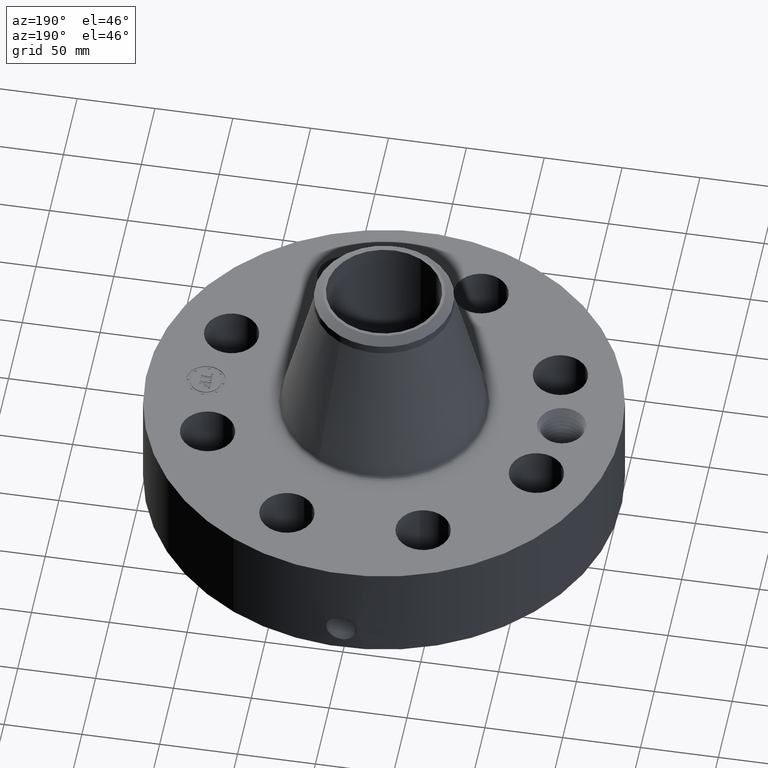
[diagram: clean part render]
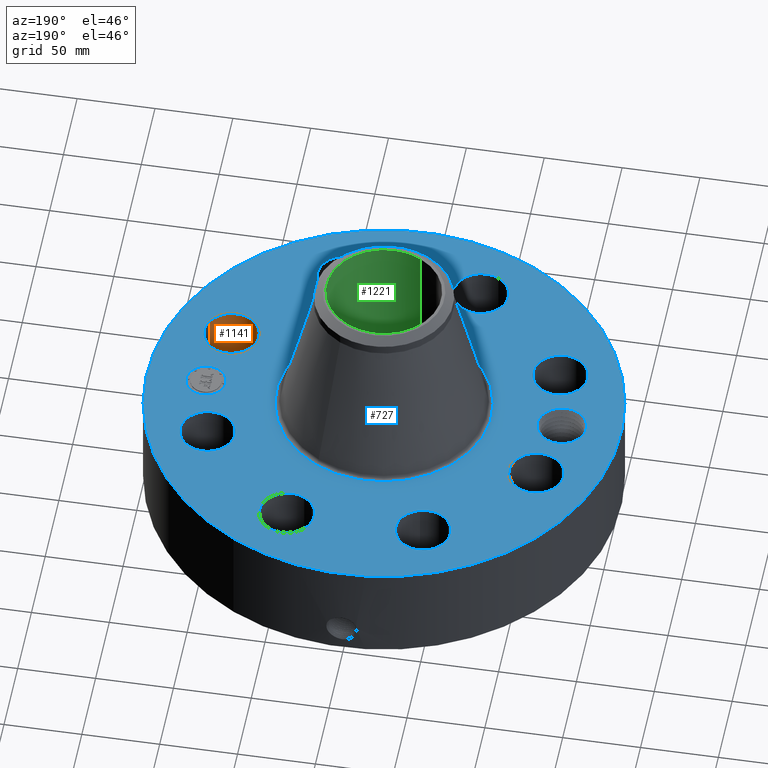
[diagram: same view with three faces highlighted in distinct colors, each labeled with its STEP entity id]
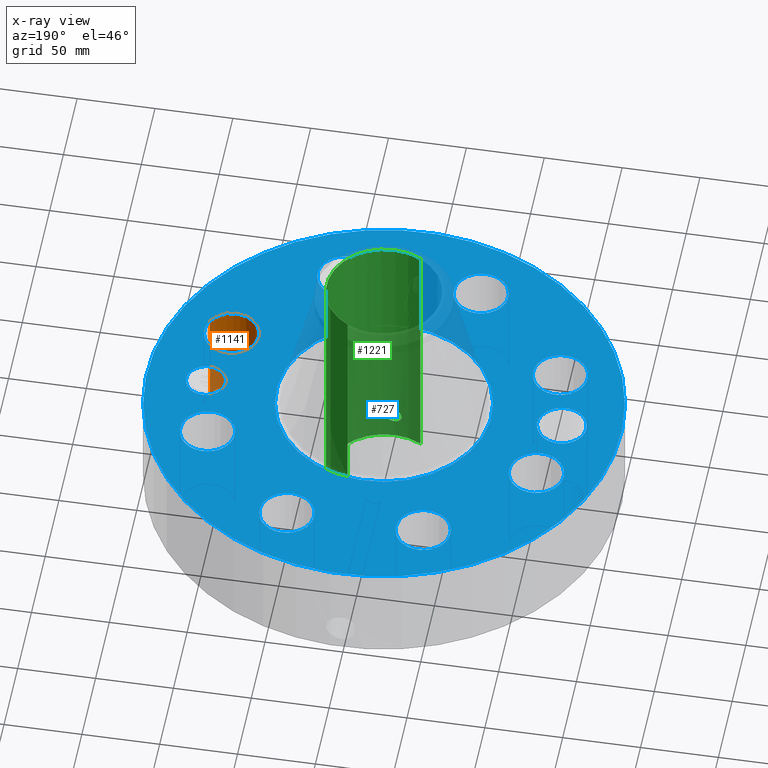
[diagram: x-ray of the same camera — body ghosted, the three highlighted faces saturated]
A machine part, auxiliary view with three faces highlighted in distinct colors.
The next image is the same camera in x-ray (body ghosted, the three faces saturated) — at least one of them is partly hidden behind the body in this view.
Their STEP definitions:

[orange] entity #1141 — the highlighted cylindrical surface (edge-blend (fillet) strip) has radius 17.526 mm, axis along (0, -0, -1).
#228=AXIS2_PLACEMENT_3D('Circle Axis2P3D',#226,#227,$) ;
#558=AXIS2_PLACEMENT_3D('Circle Axis2P3D',#556,#557,$) ;
#1123=AXIS2_PLACEMENT_3D('Cylinder Axis2P3D',#1120,#1121,#1122) ;
#226=CARTESIAN_POINT('Axis2P3D Location',(4.15745789632,-1.72207544565,0.250000000001)) ;
#230=CARTESIAN_POINT('Vertex',(4.76298986402,-2.05287906729,0.250000000001)) ;
#232=CARTESIAN_POINT('Vertex',(3.55192592861,-1.39127182401,0.250000000001)) ;
#551=CARTESIAN_POINT('Vertex',(3.55192592861,-1.39127182401,2.87000000001)) ;
#553=CARTESIAN_POINT('Vertex',(4.76298986402,-2.05287906729,2.87000000001)) ;
#556=CARTESIAN_POINT('Axis2P3D Location',(4.15745789632,-1.72207544565,2.87000000001)) ;
#1120=CARTESIAN_POINT('Axis2P3D Location',(4.15745789632,-1.72207544565,2.86606299214)) ;
#1125=CARTESIAN_POINT('Line Origine',(4.76298986402,-2.05287906729,1.56000000001)) ;
#1130=CARTESIAN_POINT('Line Origine',(3.55192592861,-1.39127182401,1.56000000001)) ;
#227=DIRECTION('Axis2P3D Direction',(0.,0.,-0.0393700787402)) ;
#557=DIRECTION('Axis2P3D Direction',(0.,0.,-0.0393700787402)) ;
#1121=DIRECTION('Axis2P3D Direction',(0.,-0.,-0.0393700787402)) ;
#1122=DIRECTION('Axis2P3D XDirection',(-0.0345504945626,0.0188750212049,0.)) ;
#1126=DIRECTION('Vector Direction',(0.,0.,-0.0393700787402)) ;
#1131=DIRECTION('Vector Direction',(0.,0.,-0.0393700787402)) ;
#1127=VECTOR('Line Direction',#1126,0.0393700787402) ;
#1132=VECTOR('Line Direction',#1131,0.0393700787402) ;
#1136=ORIENTED_EDGE('',*,*,#1129,.F.) ;
#1137=ORIENTED_EDGE('',*,*,#234,.T.) ;
#1138=ORIENTED_EDGE('',*,*,#1134,.T.) ;
#1139=ORIENTED_EDGE('',*,*,#560,.F.) ;
#1141=ADVANCED_FACE('PartBody',(#1140),#1124,.F.) ;
#229=CIRCLE('generated circle',#228,0.690000000003) ;
#559=CIRCLE('generated circle',#558,0.690000000003) ;
#1124=CYLINDRICAL_SURFACE('generated cylinder',#1123,0.690000000003) ;
#234=EDGE_CURVE('',#231,#233,#229,.T.) ;
#560=EDGE_CURVE('',#554,#552,#559,.T.) ;
#1129=EDGE_CURVE('',#231,#554,#1128,.F.) ;
#1134=EDGE_CURVE('',#233,#552,#1133,.F.) ;
#1135=EDGE_LOOP('',(#1136,#1137,#1138,#1139)) ;
#1140=FACE_OUTER_BOUND('',#1135,.T.) ;
#1128=LINE('Line',#1125,#1127) ;
#1133=LINE('Line',#1130,#1132) ;
#231=VERTEX_POINT('',#230) ;
#233=VERTEX_POINT('',#232) ;
#552=VERTEX_POINT('',#551) ;
#554=VERTEX_POINT('',#553) ;

[blue] entity #727 — the highlighted planar face has unit normal (0, 0, -1).
#58=AXIS2_PLACEMENT_3D('Circle Axis2P3D',#56,#57,$) ;
#391=AXIS2_PLACEMENT_3D('Circle Axis2P3D',#389,#390,$) ;
#490=AXIS2_PLACEMENT_3D('Plane Axis2P3D',#487,#488,#489) ;
#523=AXIS2_PLACEMENT_3D('Circle Axis2P3D',#521,#522,$) ;
#530=AXIS2_PLACEMENT_3D('Circle Axis2P3D',#528,#529,$) ;
#537=AXIS2_PLACEMENT_3D('Circle Axis2P3D',#535,#536,$) ;
#549=AXIS2_PLACEMENT_3D('Circle Axis2P3D',#547,#548,$) ;
#558=AXIS2_PLACEMENT_3D('Circle Axis2P3D',#556,#557,$) ;
#567=AXIS2_PLACEMENT_3D('Circle Axis2P3D',#565,#566,$) ;
#576=AXIS2_PLACEMENT_3D('Circle Axis2P3D',#574,#575,$) ;
#585=AXIS2_PLACEMENT_3D('Circle Axis2P3D',#583,#584,$) ;
#594=AXIS2_PLACEMENT_3D('Circle Axis2P3D',#592,#593,$) ;
#603=AXIS2_PLACEMENT_3D('Circle Axis2P3D',#601,#602,$) ;
#612=AXIS2_PLACEMENT_3D('Circle Axis2P3D',#610,#611,$) ;
#621=AXIS2_PLACEMENT_3D('Circle Axis2P3D',#619,#620,$) ;
#630=AXIS2_PLACEMENT_3D('Circle Axis2P3D',#628,#629,$) ;
#639=AXIS2_PLACEMENT_3D('Circle Axis2P3D',#637,#638,$) ;
#648=AXIS2_PLACEMENT_3D('Circle Axis2P3D',#646,#647,$) ;
#657=AXIS2_PLACEMENT_3D('Circle Axis2P3D',#655,#656,$) ;
#666=AXIS2_PLACEMENT_3D('Circle Axis2P3D',#664,#665,$) ;
#675=AXIS2_PLACEMENT_3D('Circle Axis2P3D',#673,#674,$) ;
#684=AXIS2_PLACEMENT_3D('Circle Axis2P3D',#682,#683,$) ;
#693=AXIS2_PLACEMENT_3D('Circle Axis2P3D',#691,#692,$) ;
#702=AXIS2_PLACEMENT_3D('Circle Axis2P3D',#700,#701,$) ;
#711=AXIS2_PLACEMENT_3D('Circle Axis2P3D',#709,#710,$) ;
#720=AXIS2_PLACEMENT_3D('Circle Axis2P3D',#718,#719,$) ;
#53=CARTESIAN_POINT('Vertex',(-2.87655323164,-5.26549537136,2.87000000001)) ;
#56=CARTESIAN_POINT('Axis2P3D Location',(0.,0.,2.87000000001)) ;
#60=CARTESIAN_POINT('Vertex',(2.87655323164,5.26549537136,2.87000000001)) ;
#389=CARTESIAN_POINT('Axis2P3D Location',(0.,0.,2.87000000001)) ;
#487=CARTESIAN_POINT('Axis2P3D Location',(0.,6.00000000002,2.87000000001)) ;
#497=CARTESIAN_POINT('Control Point',(-3.87500000002,1.1189649382E-015,2.87000000001)) ;
#498=CARTESIAN_POINT('Control Point',(-3.87705142233,0.0564512000007,2.87000000001)) ;
#499=CARTESIAN_POINT('Control Point',(-3.88548073587,0.112561681928,2.87000000001)) ;
#500=CARTESIAN_POINT('Control Point',(-3.90023974627,0.167363715495,2.87000000001)) ;
#501=CARTESIAN_POINT('Control Point',(-3.92105025007,0.219899050445,2.87000000001)) ;
#502=CARTESIAN_POINT('Control Point',(-3.94744118789,0.269322945812,2.87000000001)) ;
#503=CARTESIAN_POINT('Vertex',(-3.87500000002,1.1189649382E-015,2.87000000001)) ;
#505=CARTESIAN_POINT('Vertex',(-3.94744118789,0.269322945812,2.87000000001)) ;
#509=CARTESIAN_POINT('Control Point',(-3.87500000002,0.,2.87000000001)) ;
#510=CARTESIAN_POINT('Control Point',(-3.87686305243,-0.0512676216615,2.87000000001)) ;
#511=CARTESIAN_POINT('Control Point',(-3.88398649934,-0.10225422534,2.87000000001)) ;
#512=CARTESIAN_POINT('Control Point',(-3.89632551471,-0.15221696387,2.87000000001)) ;
#513=CARTESIAN_POINT('Control Point',(-3.91547867044,-0.205418488549,2.87000000001)) ;
#514=CARTESIAN_POINT('Control Point',(-3.94033925577,-0.255717825172,2.87000000001)) ;
#515=CARTESIAN_POINT('Control Point',(-3.94271603796,-0.260400077763,2.87000000001)) ;
#516=CARTESIAN_POINT('Control Point',(-3.94514208939,-0.265055494968,2.87000000001)) ;
#517=CARTESIAN_POINT('Control Point',(-3.94761701598,-0.269683386496,2.87000000001)) ;
#518=CARTESIAN_POINT('Vertex',(-3.94761701598,-0.269683386496,2.87000000001)) ;
#521=CARTESIAN_POINT('Axis2P3D Location',(-4.50000000002,1.1189649382E-015,2.87000000001)) ;
#525=CARTESIAN_POINT('Vertex',(-3.96054999922,-0.294702878581,2.87000000001)) ;
#528=CARTESIAN_POINT('Axis2P3D Location',(-4.50000000002,1.1189649382E-015,2.87000000001)) ;
#532=CARTESIAN_POINT('Vertex',(-5.03945000081,0.294702878581,2.87000000001)) ;
#535=CARTESIAN_POINT('Axis2P3D Location',(-4.50000000002,1.1189649382E-015,2.87000000001)) ;
#547=CARTESIAN_POINT('Axis2P3D Location',(4.15745789632,-1.72207544565,2.87000000001)) ;
#551=CARTESIAN_POINT('Vertex',(3.55192592861,-1.39127182401,2.87000000001)) ;
#553=CARTESIAN_POINT('Vertex',(4.76298986402,-2.05287906729,2.87000000001)) ;
#556=CARTESIAN_POINT('Axis2P3D Location',(4.15745789632,-1.72207544565,2.87000000001)) ;
#565=CARTESIAN_POINT('Axis2P3D Location',(0.,0.,2.87000000001)) ;
#569=CARTESIAN_POINT('Vertex',(-1.30369700467,-2.38640135989,2.87000000001)) ;
#571=CARTESIAN_POINT('Vertex',(1.30369700467,2.38640135989,2.87000000001)) ;
#574=CARTESIAN_POINT('Axis2P3D Location',(0.,0.,2.87000000001)) ;
#583=CARTESIAN_POINT('Axis2P3D Location',(1.72207544565,-4.15745789632,2.87000000001)) ;
#587=CARTESIAN_POINT('Vertex',(1.91633772214,-4.81954714101,2.87000000001)) ;
#589=CARTESIAN_POINT('Vertex',(1.52781316916,-3.49536865163,2.87000000001)) ;
#592=CARTESIAN_POINT('Axis2P3D Location',(1.72207544565,-4.15745789632,2.87000000001)) ;
#601=CARTESIAN_POINT('Axis2P3D Location',(-1.72207544565,-4.15745789632,2.87000000001)) ;
#605=CARTESIAN_POINT('Vertex',(-2.05287906729,-4.76298986402,2.87000000001)) ;
#607=CARTESIAN_POINT('Vertex',(-1.39127182401,-3.55192592861,2.87000000001)) ;
#610=CARTESIAN_POINT('Axis2P3D Location',(-1.72207544565,-4.15745789632,2.87000000001)) ;
#619=CARTESIAN_POINT('Axis2P3D Location',(-4.15745789632,-1.72207544565,2.87000000001)) ;
#623=CARTESIAN_POINT('Vertex',(-4.81954714101,-1.91633772214,2.87000000001)) ;
#625=CARTESIAN_POINT('Vertex',(-3.49536865163,-1.52781316916,2.87000000001)) ;
#628=CARTESIAN_POINT('Axis2P3D Location',(-4.15745789632,-1.72207544565,2.87000000001)) ;
#637=CARTESIAN_POINT('Axis2P3D Location',(-4.15745789632,1.72207544565,2.87000000001)) ;
#641=CARTESIAN_POINT('Vertex',(-4.76298986402,2.05287906729,2.87000000001)) ;
#643=CARTESIAN_POINT('Vertex',(-3.55192592861,1.39127182401,2.87000000001)) ;
#646=CARTESIAN_POINT('Axis2P3D Location',(-4.15745789632,1.72207544565,2.87000000001)) ;
#655=CARTESIAN_POINT('Axis2P3D Location',(-1.72207544565,4.15745789632,2.87000000001)) ;
#659=CARTESIAN_POINT('Vertex',(-1.91633772214,4.81954714101,2.87000000001)) ;
#661=CARTESIAN_POINT('Vertex',(-1.52781316916,3.49536865163,2.87000000001)) ;
#664=CARTESIAN_POINT('Axis2P3D Location',(-1.72207544565,4.15745789632,2.87000000001)) ;
#673=CARTESIAN_POINT('Axis2P3D Location',(1.72207544565,4.15745789632,2.87000000001)) ;
#677=CARTESIAN_POINT('Vertex',(2.05287906729,4.76298986402,2.87000000001)) ;
#679=CARTESIAN_POINT('Vertex',(1.39127182401,3.55192592861,2.87000000001)) ;
#682=CARTESIAN_POINT('Axis2P3D Location',(1.72207544565,4.15745789632,2.87000000001)) ;
#691=CARTESIAN_POINT('Axis2P3D Location',(4.15745789632,1.72207544565,2.87000000001)) ;
#695=CARTESIAN_POINT('Vertex',(4.81954714101,1.91633772214,2.87000000001)) ;
#697=CARTESIAN_POINT('Vertex',(3.49536865163,1.52781316916,2.87000000001)) ;
#700=CARTESIAN_POINT('Axis2P3D Location',(4.15745789632,1.72207544565,2.87000000001)) ;
#709=CARTESIAN_POINT('Axis2P3D Location',(4.50000000002,-1.00706844438E-014,2.87000000001)) ;
#713=CARTESIAN_POINT('Vertex',(4.50000000002,0.499999995002,2.87000000001)) ;
#715=CARTESIAN_POINT('Vertex',(4.50000000002,-0.499999995002,2.87000000001)) ;
#718=CARTESIAN_POINT('Axis2P3D Location',(4.50000000002,-1.00706844438E-014,2.87000000001)) ;
#57=DIRECTION('Axis2P3D Direction',(0.,0.,-0.0393700787402)) ;
#390=DIRECTION('Axis2P3D Direction',(0.,0.,-0.0393700787402)) ;
#488=DIRECTION('Axis2P3D Direction',(0.,0.,-0.0393700787402)) ;
#489=DIRECTION('Axis2P3D XDirection',(0.0393700787402,0.,0.)) ;
#522=DIRECTION('Axis2P3D Direction',(0.,0.,-0.0393700787402)) ;
#529=DIRECTION('Axis2P3D Direction',(0.,0.,-0.0393700787402)) ;
#536=DIRECTION('Axis2P3D Direction',(0.,0.,-0.0393700787402)) ;
#548=DIRECTION('Axis2P3D Direction',(0.,0.,-0.0393700787402)) ;
#557=DIRECTION('Axis2P3D Direction',(0.,0.,-0.0393700787402)) ;
#566=DIRECTION('Axis2P3D Direction',(0.,0.,-0.0393700787402)) ;
#575=DIRECTION('Axis2P3D Direction',(0.,0.,-0.0393700787402)) ;
#584=DIRECTION('Axis2P3D Direction',(0.,0.,-0.0393700787402)) ;
#593=DIRECTION('Axis2P3D Direction',(0.,0.,-0.0393700787402)) ;
#602=DIRECTION('Axis2P3D Direction',(0.,0.,-0.0393700787402)) ;
#611=DIRECTION('Axis2P3D Direction',(0.,0.,-0.0393700787402)) ;
#620=DIRECTION('Axis2P3D Direction',(0.,0.,-0.0393700787402)) ;
#629=DIRECTION('Axis2P3D Direction',(0.,0.,-0.0393700787402)) ;
#638=DIRECTION('Axis2P3D Direction',(0.,0.,-0.0393700787402)) ;
#647=DIRECTION('Axis2P3D Direction',(0.,0.,-0.0393700787402)) ;
#656=DIRECTION('Axis2P3D Direction',(0.,0.,-0.0393700787402)) ;
#665=DIRECTION('Axis2P3D Direction',(0.,0.,-0.0393700787402)) ;
#674=DIRECTION('Axis2P3D Direction',(0.,0.,-0.0393700787402)) ;
#683=DIRECTION('Axis2P3D Direction',(0.,0.,-0.0393700787402)) ;
#692=DIRECTION('Axis2P3D Direction',(0.,0.,-0.0393700787402)) ;
#701=DIRECTION('Axis2P3D Direction',(0.,0.,-0.0393700787402)) ;
#710=DIRECTION('Axis2P3D Direction',(0.,0.,-0.0393700787402)) ;
#719=DIRECTION('Axis2P3D Direction',(0.,0.,-0.0393700787402)) ;
#493=ORIENTED_EDGE('',*,*,#393,.F.) ;
#494=ORIENTED_EDGE('',*,*,#62,.F.) ;
#541=ORIENTED_EDGE('',*,*,#507,.F.) ;
#542=ORIENTED_EDGE('',*,*,#520,.T.) ;
#543=ORIENTED_EDGE('',*,*,#527,.T.) ;
#544=ORIENTED_EDGE('',*,*,#534,.T.) ;
#545=ORIENTED_EDGE('',*,*,#539,.T.) ;
#562=ORIENTED_EDGE('',*,*,#555,.T.) ;
#563=ORIENTED_EDGE('',*,*,#560,.T.) ;
#580=ORIENTED_EDGE('',*,*,#573,.T.) ;
#581=ORIENTED_EDGE('',*,*,#578,.T.) ;
#598=ORIENTED_EDGE('',*,*,#591,.T.) ;
#599=ORIENTED_EDGE('',*,*,#596,.T.) ;
#616=ORIENTED_EDGE('',*,*,#609,.T.) ;
#617=ORIENTED_EDGE('',*,*,#614,.T.) ;
#634=ORIENTED_EDGE('',*,*,#627,.T.) ;
#635=ORIENTED_EDGE('',*,*,#632,.T.) ;
#652=ORIENTED_EDGE('',*,*,#645,.T.) ;
#653=ORIENTED_EDGE('',*,*,#650,.T.) ;
#670=ORIENTED_EDGE('',*,*,#663,.T.) ;
#671=ORIENTED_EDGE('',*,*,#668,.T.) ;
#688=ORIENTED_EDGE('',*,*,#681,.T.) ;
#689=ORIENTED_EDGE('',*,*,#686,.T.) ;
#706=ORIENTED_EDGE('',*,*,#699,.T.) ;
#707=ORIENTED_EDGE('',*,*,#704,.T.) ;
#724=ORIENTED_EDGE('',*,*,#717,.T.) ;
#725=ORIENTED_EDGE('',*,*,#722,.T.) ;
#546=FACE_BOUND('',#540,.T.) ;
#564=FACE_BOUND('',#561,.T.) ;
#582=FACE_BOUND('',#579,.T.) ;
#600=FACE_BOUND('',#597,.T.) ;
#618=FACE_BOUND('',#615,.T.) ;
#636=FACE_BOUND('',#633,.T.) ;
#654=FACE_BOUND('',#651,.T.) ;
#672=FACE_BOUND('',#669,.T.) ;
#690=FACE_BOUND('',#687,.T.) ;
#708=FACE_BOUND('',#705,.T.) ;
#726=FACE_BOUND('',#723,.T.) ;
#727=ADVANCED_FACE('PartBody',(#495,#546,#564,#582,#600,#618,#636,#654,#672,#690,#708,#726),#491,.F.) ;
#496=B_SPLINE_CURVE_WITH_KNOTS('',5,(#497,#498,#499,#500,#501,#502),.UNSPECIFIED.,.F.,.U.,(6,6),(0.,9.86971058851),.UNSPECIFIED.) ;
#508=B_SPLINE_CURVE_WITH_KNOTS('',5,(#509,#510,#511,#512,#513,#514,#515,#516,#517),.UNSPECIFIED.,.F.,.U.,(6,3,6),(0.,8.96343369774,9.88912919277),.UNSPECIFIED.) ;
#59=CIRCLE('generated circle',#58,6.00000000002) ;
#392=CIRCLE('generated circle',#391,6.00000000002) ;
#524=CIRCLE('generated circle',#523,0.614700000002) ;
#531=CIRCLE('generated circle',#530,0.614700000002) ;
#538=CIRCLE('generated circle',#537,0.614700000002) ;
#550=CIRCLE('generated circle',#549,0.690000000003) ;
#559=CIRCLE('generated circle',#558,0.690000000003) ;
#568=CIRCLE('generated circle',#567,2.71928985775) ;
#577=CIRCLE('generated circle',#576,2.71928985775) ;
#586=CIRCLE('generated circle',#585,0.690000000003) ;
#595=CIRCLE('generated circle',#594,0.690000000003) ;
#604=CIRCLE('generated circle',#603,0.690000000003) ;
#613=CIRCLE('generated circle',#612,0.690000000003) ;
#622=CIRCLE('generated circle',#621,0.690000000003) ;
#631=CIRCLE('generated circle',#630,0.690000000003) ;
#640=CIRCLE('generated circle',#639,0.690000000003) ;
#649=CIRCLE('generated circle',#648,0.690000000003) ;
#658=CIRCLE('generated circle',#657,0.690000000003) ;
#667=CIRCLE('generated circle',#666,0.690000000003) ;
#676=CIRCLE('generated circle',#675,0.690000000003) ;
#685=CIRCLE('generated circle',#684,0.690000000003) ;
#694=CIRCLE('generated circle',#693,0.690000000003) ;
#703=CIRCLE('generated circle',#702,0.690000000003) ;
#712=CIRCLE('generated circle',#711,0.499999995002) ;
#721=CIRCLE('generated circle',#720,0.499999995002) ;
#62=EDGE_CURVE('',#54,#61,#59,.T.) ;
#393=EDGE_CURVE('',#61,#54,#392,.T.) ;
#507=EDGE_CURVE('',#504,#506,#496,.T.) ;
#520=EDGE_CURVE('',#504,#519,#508,.T.) ;
#527=EDGE_CURVE('',#519,#526,#524,.T.) ;
#534=EDGE_CURVE('',#526,#533,#531,.T.) ;
#539=EDGE_CURVE('',#533,#506,#538,.T.) ;
#555=EDGE_CURVE('',#552,#554,#550,.T.) ;
#560=EDGE_CURVE('',#554,#552,#559,.T.) ;
#573=EDGE_CURVE('',#570,#572,#568,.T.) ;
#578=EDGE_CURVE('',#572,#570,#577,.T.) ;
#591=EDGE_CURVE('',#588,#590,#586,.T.) ;
#596=EDGE_CURVE('',#590,#588,#595,.T.) ;
#609=EDGE_CURVE('',#606,#608,#604,.T.) ;
#614=EDGE_CURVE('',#608,#606,#613,.T.) ;
#627=EDGE_CURVE('',#624,#626,#622,.T.) ;
#632=EDGE_CURVE('',#626,#624,#631,.T.) ;
#645=EDGE_CURVE('',#642,#644,#640,.T.) ;
#650=EDGE_CURVE('',#644,#642,#649,.T.) ;
#663=EDGE_CURVE('',#660,#662,#658,.T.) ;
#668=EDGE_CURVE('',#662,#660,#667,.T.) ;
#681=EDGE_CURVE('',#678,#680,#676,.T.) ;
#686=EDGE_CURVE('',#680,#678,#685,.T.) ;
#699=EDGE_CURVE('',#696,#698,#694,.T.) ;
#704=EDGE_CURVE('',#698,#696,#703,.T.) ;
#717=EDGE_CURVE('',#714,#716,#712,.T.) ;
#722=EDGE_CURVE('',#716,#714,#721,.T.) ;
#492=EDGE_LOOP('',(#493,#494)) ;
#540=EDGE_LOOP('',(#541,#542,#543,#544,#545)) ;
#561=EDGE_LOOP('',(#562,#563)) ;
#579=EDGE_LOOP('',(#580,#581)) ;
#597=EDGE_LOOP('',(#598,#599)) ;
#615=EDGE_LOOP('',(#616,#617)) ;
#633=EDGE_LOOP('',(#634,#635)) ;
#651=EDGE_LOOP('',(#652,#653)) ;
#669=EDGE_LOOP('',(#670,#671)) ;
#687=EDGE_LOOP('',(#688,#689)) ;
#705=EDGE_LOOP('',(#706,#707)) ;
#723=EDGE_LOOP('',(#724,#725)) ;
#495=FACE_OUTER_BOUND('',#492,.T.) ;
#491=PLANE('',#490) ;
#54=VERTEX_POINT('',#53) ;
#61=VERTEX_POINT('',#60) ;
#504=VERTEX_POINT('',#503) ;
#506=VERTEX_POINT('',#505) ;
#519=VERTEX_POINT('',#518) ;
#526=VERTEX_POINT('',#525) ;
#533=VERTEX_POINT('',#532) ;
#552=VERTEX_POINT('',#551) ;
#554=VERTEX_POINT('',#553) ;
#570=VERTEX_POINT('',#569) ;
#572=VERTEX_POINT('',#571) ;
#588=VERTEX_POINT('',#587) ;
#590=VERTEX_POINT('',#589) ;
#606=VERTEX_POINT('',#605) ;
#608=VERTEX_POINT('',#607) ;
#624=VERTEX_POINT('',#623) ;
#626=VERTEX_POINT('',#625) ;
#642=VERTEX_POINT('',#641) ;
#644=VERTEX_POINT('',#643) ;
#660=VERTEX_POINT('',#659) ;
#662=VERTEX_POINT('',#661) ;
#678=VERTEX_POINT('',#677) ;
#680=VERTEX_POINT('',#679) ;
#696=VERTEX_POINT('',#695) ;
#698=VERTEX_POINT('',#697) ;
#714=VERTEX_POINT('',#713) ;
#716=VERTEX_POINT('',#715) ;

[green] entity #1221 — the highlighted cylindrical surface (partial cylindrical patch) has radius 36.83 mm, axis along (0, 0, -1).
#246=AXIS2_PLACEMENT_3D('Circle Axis2P3D',#244,#245,$) ;
#1152=AXIS2_PLACEMENT_3D('Cylinder Axis2P3D',#1149,#1150,#1151) ;
#1156=AXIS2_PLACEMENT_3D('Circle Axis2P3D',#1154,#1155,$) ;
#244=CARTESIAN_POINT('Axis2P3D Location',(0.,0.,0.250000000001)) ;
#248=CARTESIAN_POINT('Vertex',(0.695167030979,1.27249471475,0.250000000001)) ;
#250=CARTESIAN_POINT('Vertex',(-0.695167030979,-1.27249471475,0.250000000001)) ;
#1149=CARTESIAN_POINT('Axis2P3D Location',(0.,0.,3.56000000001)) ;
#1154=CARTESIAN_POINT('Axis2P3D Location',(0.,0.,6.87000000003)) ;
#1158=CARTESIAN_POINT('Vertex',(0.695167030979,1.27249471475,6.87000000003)) ;
#1160=CARTESIAN_POINT('Vertex',(-0.695167030979,-1.27249471475,6.87000000003)) ;
#1163=CARTESIAN_POINT('Line Origine',(0.695167030979,1.27249471475,3.56000000001)) ;
#1168=CARTESIAN_POINT('Line Origine',(-0.695167030979,-1.27249471475,3.56000000001)) ;
#1180=CARTESIAN_POINT('Control Point',(0.164546730355,-1.44063332377,0.850107711515)) ;
#1181=CARTESIAN_POINT('Control Point',(0.153731070916,-1.44186867031,0.83030977971)) ;
#1182=CARTESIAN_POINT('Control Point',(0.139944075102,-1.4433405746,0.812149885811)) ;
#1183=CARTESIAN_POINT('Control Point',(0.12351024305,-1.44489924446,0.796210668087)) ;
#1184=CARTESIAN_POINT('Control Point',(0.07714576675,-1.44849158589,0.763196869125)) ;
#1185=CARTESIAN_POINT('Control Point',(0.0211416426359,-1.45046278414,0.749002255779)) ;
#1186=CARTESIAN_POINT('Control Point',(-0.0138877540678,-1.45055904578,0.748336325563)) ;
#1187=CARTESIAN_POINT('Control Point',(-0.0704180054651,-1.4488559579,0.760406332186)) ;
#1188=CARTESIAN_POINT('Control Point',(-0.118016251898,-1.44536877231,0.791663409432)) ;
#1189=CARTESIAN_POINT('Control Point',(-0.135050957038,-1.44381724598,0.806987403618)) ;
#1190=CARTESIAN_POINT('Control Point',(-0.17442460389,-1.439735322,0.855004056747)) ;
#1191=CARTESIAN_POINT('Control Point',(-0.192227243463,-1.43719597583,0.915976423194)) ;
#1192=CARTESIAN_POINT('Control Point',(-0.192994709918,-1.43707883877,0.956812274152)) ;
#1193=CARTESIAN_POINT('Control Point',(-0.183180576883,-1.43850499696,0.995783261214)) ;
#1194=CARTESIAN_POINT('Control Point',(-0.164546730355,-1.44063332377,1.02989228849)) ;
#1195=CARTESIAN_POINT('Vertex',(0.164546730355,-1.44063332377,0.850107711515)) ;
#1197=CARTESIAN_POINT('Vertex',(-0.164546730355,-1.44063332377,1.02989228849)) ;
#1201=CARTESIAN_POINT('Control Point',(-0.164546730355,-1.44063332377,1.02989228849)) ;
#1202=CARTESIAN_POINT('Control Point',(-0.15373107092,-1.44186867031,1.04969022029)) ;
#1203=CARTESIAN_POINT('Control Point',(-0.13994407511,-1.4433405746,1.06785011419)) ;
#1204=CARTESIAN_POINT('Control Point',(-0.123510243039,-1.44489924446,1.08378933193)) ;
#1205=CARTESIAN_POINT('Control Point',(-0.0771457667445,-1.44849158589,1.11680313088)) ;
#1206=CARTESIAN_POINT('Control Point',(-0.0211416426383,-1.45046278414,1.13099774423)) ;
#1207=CARTESIAN_POINT('Control Point',(0.0138877540696,-1.45055904578,1.13166367444)) ;
#1208=CARTESIAN_POINT('Control Point',(0.0704180054638,-1.4488559579,1.11959366782)) ;
#1209=CARTESIAN_POINT('Control Point',(0.118016251895,-1.44536877231,1.08833659058)) ;
#1210=CARTESIAN_POINT('Control Point',(0.13505095704,-1.44381724598,1.07301259639)) ;
#1211=CARTESIAN_POINT('Control Point',(0.174424603894,-1.439735322,1.02499594325)) ;
#1212=CARTESIAN_POINT('Control Point',(0.192227243466,-1.43719597583,0.964023576801)) ;
#1213=CARTESIAN_POINT('Control Point',(0.192994709922,-1.43707883877,0.923187725868)) ;
#1214=CARTESIAN_POINT('Control Point',(0.183180576886,-1.43850499696,0.884216738799)) ;
#1215=CARTESIAN_POINT('Control Point',(0.164546730355,-1.44063332377,0.850107711515)) ;
#245=DIRECTION('Axis2P3D Direction',(0.,0.,-0.0393700787402)) ;
#1150=DIRECTION('Axis2P3D Direction',(0.,0.,-0.0393700787402)) ;
#1151=DIRECTION('Axis2P3D XDirection',(-0.0188750212049,-0.0345504945626,0.)) ;
#1155=DIRECTION('Axis2P3D Direction',(0.,0.,-0.0393700787402)) ;
#1164=DIRECTION('Vector Direction',(0.,0.,-0.0393700787402)) ;
#1169=DIRECTION('Vector Direction',(0.,0.,-0.0393700787402)) ;
#1165=VECTOR('Line Direction',#1164,0.0393700787402) ;
#1170=VECTOR('Line Direction',#1169,0.0393700787402) ;
#1174=ORIENTED_EDGE('',*,*,#1162,.F.) ;
#1175=ORIENTED_EDGE('',*,*,#1167,.T.) ;
#1176=ORIENTED_EDGE('',*,*,#252,.T.) ;
#1177=ORIENTED_EDGE('',*,*,#1172,.F.) ;
#1218=ORIENTED_EDGE('',*,*,#1199,.F.) ;
#1219=ORIENTED_EDGE('',*,*,#1216,.F.) ;
#1220=FACE_BOUND('',#1217,.T.) ;
#1221=ADVANCED_FACE('PartBody',(#1178,#1220),#1153,.F.) ;
#1179=B_SPLINE_CURVE_WITH_KNOTS('',5,(#1180,#1181,#1182,#1183,#1184,#1185,#1186,#1187,#1188,#1189,#1190,#1191,#1192,#1193,#1194),.UNSPECIFIED.,.F.,.U.,(6,3,3,3,6),(0.,4.05789415036,10.1286634858,14.1897420036,21.180917831),.UNSPECIFIED.) ;
#1200=B_SPLINE_CURVE_WITH_KNOTS('',5,(#1201,#1202,#1203,#1204,#1205,#1206,#1207,#1208,#1209,#1210,#1211,#1212,#1213,#1214,#1215),.UNSPECIFIED.,.F.,.U.,(6,3,3,3,6),(0.,4.05789414914,10.1286634844,14.1897420018,21.1809178303),.UNSPECIFIED.) ;
#247=CIRCLE('generated circle',#246,1.45000000001) ;
#1157=CIRCLE('generated circle',#1156,1.45000000001) ;
#1153=CYLINDRICAL_SURFACE('generated cylinder',#1152,1.45000000001) ;
#252=EDGE_CURVE('',#249,#251,#247,.T.) ;
#1162=EDGE_CURVE('',#1159,#1161,#1157,.T.) ;
#1167=EDGE_CURVE('',#1159,#249,#1166,.T.) ;
#1172=EDGE_CURVE('',#1161,#251,#1171,.T.) ;
#1199=EDGE_CURVE('',#1196,#1198,#1179,.T.) ;
#1216=EDGE_CURVE('',#1198,#1196,#1200,.T.) ;
#1173=EDGE_LOOP('',(#1174,#1175,#1176,#1177)) ;
#1217=EDGE_LOOP('',(#1218,#1219)) ;
#1178=FACE_OUTER_BOUND('',#1173,.T.) ;
#1166=LINE('Line',#1163,#1165) ;
#1171=LINE('Line',#1168,#1170) ;
#249=VERTEX_POINT('',#248) ;
#251=VERTEX_POINT('',#250) ;
#1159=VERTEX_POINT('',#1158) ;
#1161=VERTEX_POINT('',#1160) ;
#1196=VERTEX_POINT('',#1195) ;
#1198=VERTEX_POINT('',#1197) ;